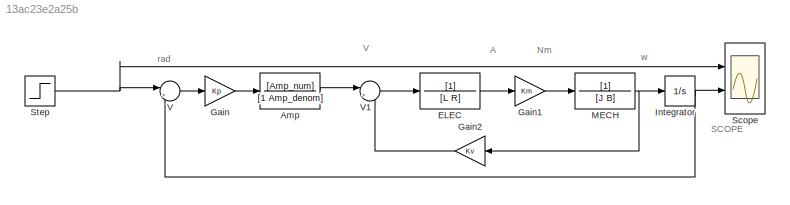
MODEL slx_13ac23e2a25b
KIND model
CONFIG AbsTol = auto
CONFIG EnableMultiTasking = off
CONFIG FixedStep = auto
CONFIG MaxStep = auto
CONFIG MinStep = auto
CONFIG RelTol = 1e-3
CONFIG SampleTimeConstraint = Unconstrained
CONFIG Solver = VariableStepAuto
CONFIG SolverName = VariableStepAuto
CONFIG StartTime = 0.0
CONFIG StopTime = 100
BLOCK [TransferFcn] Amp
  Denominator = [1 Amp_denom]
  Numerator = [Amp_num]
BLOCK [TransferFcn] ELEC
  Denominator = [L R]
BLOCK [Gain] Gain
  Gain = Kp
BLOCK [Gain] Gain1
  Gain = Km
BLOCK [Gain] Gain2
  Gain = Kv
  NameLocation = top
BLOCK [Integrator] Integrator
  Ports = [1, 1]
BLOCK [TransferFcn] MECH
  Denominator = [J B]
BLOCK [Scope] Scope
  Floating = off
  NumInputPorts = 2
  Ports = [2]
  ScopeSpecificationString = Simulink.scopes.TimeScopeBlockCfg('CurrentConfiguration', extmgr.ConfigurationSet(extmgr.Configuration('Core','General UI',true),extmgr.Configuration('Core','Source UI',true),extmgr.Configuration('Sources','WiredSimulink',true,'SampleTime','0'),extmgr.Configuration('Visuals','Time Domain',true,'SerializedDisplays',{struct('MinYLimReal','0.06713','MaxYLimReal','3.37657','YLabelReal','Angle','MinYLi...<+1481ch>
BLOCK [Step] Step
  After = pi/2
  SampleTime = 0
BLOCK [Sum] V
  Inputs = |+-
  Ports = [2, 1]
BLOCK [Sum] V1
  Inputs = |+-
  Ports = [2, 1]
ANNOTATION (root): A
ANNOTATION (root): Nm
ANNOTATION (root): SCOPE
ANNOTATION (root): V
ANNOTATION (root): rad
ANNOTATION (root): w
LINE Amp:1 -> V1:1
LINE ELEC:1 -> Gain1:1
LINE Gain1:1 -> MECH:1
LINE Gain2:1 -> V1:2
LINE Gain:1 -> Amp:1
NET Integrator:1 -> Scope:2, V:2
NET MECH:1 -> Gain2:1, Integrator:1
NET Step:1 -> Scope:1, V:1
LINE V1:1 -> ELEC:1
LINE V:1 -> Gain:1
note: NET lines group one-source signal fan-out (src -> all destinations, sorted); 1:1 wires keep LINE
